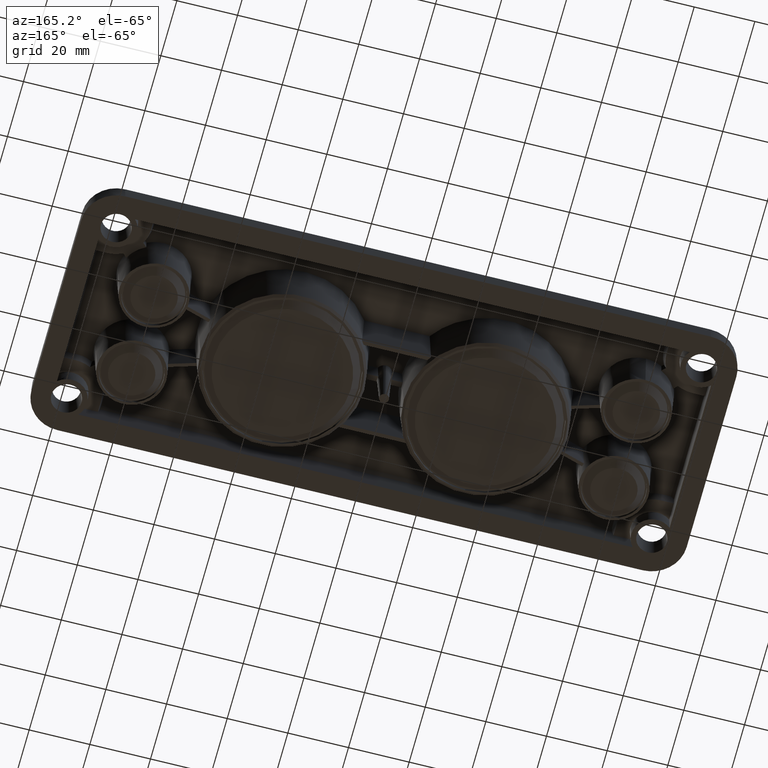
[diagram: clean part render]
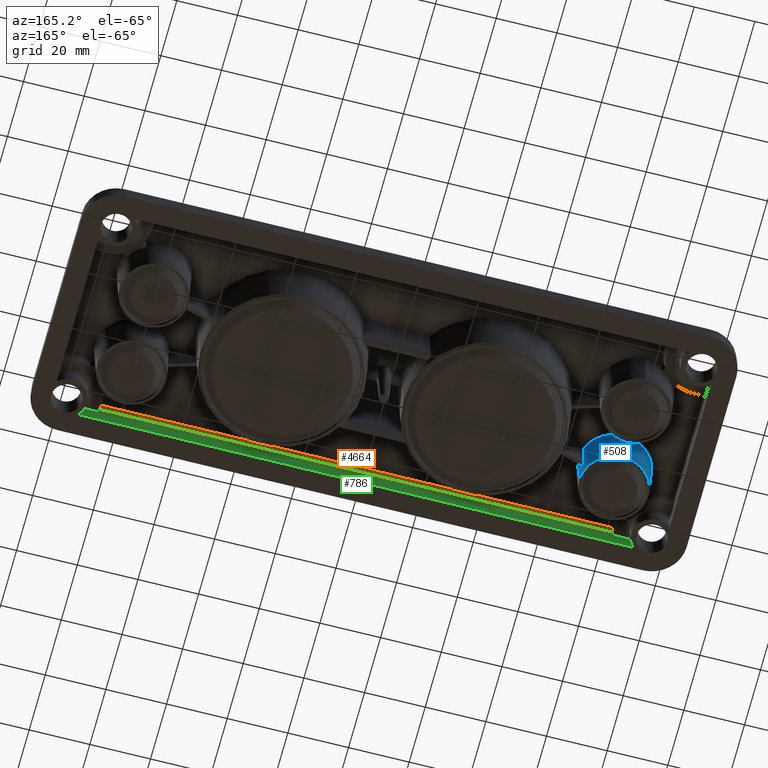
[diagram: same view with three faces highlighted in distinct colors, each labeled with its STEP entity id]
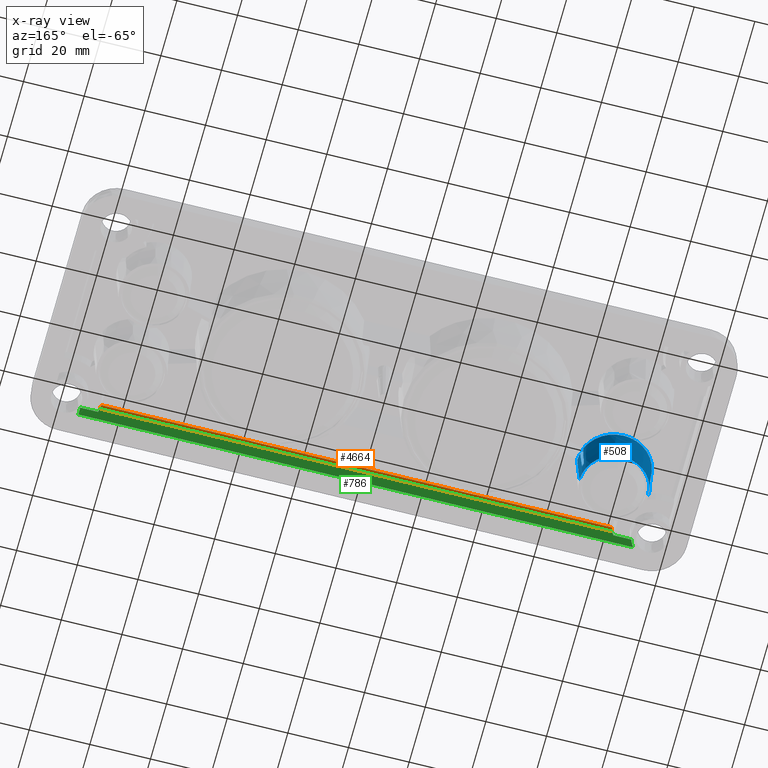
[diagram: x-ray of the same camera — body ghosted, the three highlighted faces saturated]
A machine part, auxiliary view with three faces highlighted in distinct colors.
The next image is the same camera in x-ray (body ghosted, the three faces saturated) — at least one of them is partly hidden behind the body in this view.
Their STEP definitions:

[orange] entity #4664 — the highlighted planar face has unit normal (0, 0.6884, -0.7254).
#158 = LINE ( 'NONE', #3051, #7652 ) ;
#596 = CARTESIAN_POINT ( 'NONE',  ( 84.19615242270671700, -34.08073776573567000, 6.999999999999999100 ) ) ;
#1199 = EDGE_CURVE ( 'NONE', #3316, #4464, #9877, .T. ) ;
#1209 = VECTOR ( 'NONE', #8122, 1000.000000000000000 ) ;
#1221 = ORIENTED_EDGE ( 'NONE', *, *, #9351, .T. ) ;
#1745 = EDGE_LOOP ( 'NONE', ( #9607, #3641, #7787, #1221 ) ) ;
#1861 = LINE ( 'NONE', #7263, #6465 ) ;
#1972 = CARTESIAN_POINT ( 'NONE',  ( -84.46373440008206000, -35.13307372197861200, 6.001370465245422300 ) ) ;
#2060 = PLANE ( 'NONE',  #8461 ) ;
#2387 = CARTESIAN_POINT ( 'NONE',  ( 84.46373440008206000, -35.13307372197861200, 6.001370465245425800 ) ) ;
#2474 = VERTEX_POINT ( 'NONE', #2387 ) ;
#3051 = CARTESIAN_POINT ( 'NONE',  ( 84.19615242270673100, -34.08073776573567000, 6.999999999999999100 ) ) ;
#3200 = DIRECTION ( 'NONE',  ( 0.1813845403661493200, -0.7133420404698815900, -0.6769363203540098600 ) ) ;
#3316 = VERTEX_POINT ( 'NONE', #1972 ) ;
#3641 = ORIENTED_EDGE ( 'NONE', *, *, #4745, .T. ) ;
#3816 = VECTOR ( 'NONE', #4612, 1000.000000000000000 ) ;
#4464 = VERTEX_POINT ( 'NONE', #9789 ) ;
#4612 = DIRECTION ( 'NONE',  ( 0.1813845403661491800, 0.7133420404698810300, 0.6769363203540105200 ) ) ;
#4643 = DIRECTION ( 'NONE',  ( 6.773501300776240900E-018, 0.6883545756937548000, -0.7253743710122869700 ) ) ;
#4664 = ADVANCED_FACE ( 'NONE', ( #8443 ), #2060, .T. ) ;
#4745 = EDGE_CURVE ( 'NONE', #2474, #3316, #10153, .T. ) ;
#4803 = CARTESIAN_POINT ( 'NONE',  ( -84.46373440008203200, -35.13307372197861200, 6.001370465245426700 ) ) ;
#4807 = EDGE_CURVE ( 'NONE', #9349, #2474, #158, .T. ) ;
#5410 = DIRECTION ( 'NONE',  ( 0.0000000000000000000, 0.7253743710122869700, 0.6883545756937548000 ) ) ;
#6465 = VECTOR ( 'NONE', #10649, 1000.000000000000000 ) ;
#7263 = CARTESIAN_POINT ( 'NONE',  ( 3.200980580693822700, -34.08073776573567000, 7.000000000000000000 ) ) ;
#7284 = CARTESIAN_POINT ( 'NONE',  ( 91.40196116138766100, -35.13307372197861200, 6.001370465245427600 ) ) ;
#7652 = VECTOR ( 'NONE', #3200, 1000.000000000000000 ) ;
#7787 = ORIENTED_EDGE ( 'NONE', *, *, #1199, .T. ) ;
#8122 = DIRECTION ( 'NONE',  ( -1.000000000000000000, 9.813181410966728600E-018, -5.142870454504143400E-019 ) ) ;
#8443 = FACE_OUTER_BOUND ( 'NONE', #1745, .T. ) ;
#8461 = AXIS2_PLACEMENT_3D ( 'NONE', #8819, #4643, #5410 ) ;
#8819 = CARTESIAN_POINT ( 'NONE',  ( 3.200980580693822700, -34.60690574385714100, 6.500685232622711100 ) ) ;
#9349 = VERTEX_POINT ( 'NONE', #596 ) ;
#9351 = EDGE_CURVE ( 'NONE', #4464, #9349, #1861, .T. ) ;
#9607 = ORIENTED_EDGE ( 'NONE', *, *, #4807, .T. ) ;
#9789 = CARTESIAN_POINT ( 'NONE',  ( -84.19615242270667500, -34.08073776573567000, 6.999999999999999100 ) ) ;
#9877 = LINE ( 'NONE', #4803, #3816 ) ;
#10153 = LINE ( 'NONE', #7284, #1209 ) ;
#10649 = DIRECTION ( 'NONE',  ( 1.000000000000000000, -4.662570613856925300E-018, 4.913324245601473400E-018 ) ) ;

[blue] entity #508 — the highlighted conical surface has half-angle 3 deg.
#105 = CARTESIAN_POINT ( 'NONE',  ( -67.67327122121194800, -11.35459341353552900, 7.000000000000000900 ) ) ;
#200 = CARTESIAN_POINT ( 'NONE',  ( -86.48067782908010800, -4.916530158020561800, -7.500000000000007100 ) ) ;
#264 = CARTESIAN_POINT ( 'NONE',  ( -90.42439762292824000, -8.570012452448244400, 7.000000000000006200 ) ) ;
#293 = ORIENTED_EDGE ( 'NONE', *, *, #468, .T. ) ;
#310 = EDGE_LOOP ( 'NONE', ( #8378, #6659, #6994, #7792, #293, #6895, #6624, #5521 ) ) ;
#342 = CARTESIAN_POINT ( 'NONE',  ( -87.93241893705607000, -5.184017975268633700, 7.000000000000005300 ) ) ;
#359 = CARTESIAN_POINT ( 'NONE',  ( -68.25649940862764700, -11.16707493187792200, -3.000000000000002700 ) ) ;
#394 = CARTESIAN_POINT ( 'NONE',  ( -79.49999999999995700, -13.99999999999997300, 6.999999999999999100 ) ) ;
#409 = CARTESIAN_POINT ( 'NONE',  ( -68.71177438289376500, -8.304263329048467300, 7.000000000000007100 ) ) ;
#468 = EDGE_CURVE ( 'NONE', #2886, #1741, #7290, .T. ) ;
#508 = ADVANCED_FACE ( 'NONE', ( #9477 ), #6335, .T. ) ;
#979 = AXIS2_PLACEMENT_3D ( 'NONE', #394, #4655, #6267 ) ;
#1114 = CARTESIAN_POINT ( 'NONE',  ( -72.38964787629905100, -4.086871287661449700, 7.000000000000005300 ) ) ;
#1165 = CARTESIAN_POINT ( 'NONE',  ( -67.38101944820756700, -13.99999999999997500, 7.000000000000003600 ) ) ;
#1178 = CARTESIAN_POINT ( 'NONE',  ( -74.83550361446370400, -2.727480243542356900, 7.000000000000006200 ) ) ;
#1446 = CARTESIAN_POINT ( 'NONE',  ( -68.58463294845320500, -10.08892187245101500, -3.000000000000001800 ) ) ;
#1741 = VERTEX_POINT ( 'NONE', #6827 ) ;
#1782 = CARTESIAN_POINT ( 'NONE',  ( -76.52678804757094600, -2.936578376944387600, -7.500000000000007100 ) ) ;
#1792 = CARTESIAN_POINT ( 'NONE',  ( -67.47922358817444900, -12.22211553200407000, 7.000000000000006200 ) ) ;
#1812 = CARTESIAN_POINT ( 'NONE',  ( -68.43657837694438200, -11.02678804757096400, -7.500000000000007100 ) ) ;
#1818 = B_SPLINE_CURVE_WITH_KNOTS ( 'NONE', 3,
 ( #4441, #10400, #8776, #264, #8808, #342, #2023, #3659, #9543, #7896, #4526, #6130, #1178, #1114, #7059, #3700, #409, #2789 ),
 .UNSPECIFIED., .F., .F.,
 ( 4, 2, 2, 2, 2, 2, 2, 2, 4 ),
 ( 0.0000000000000000000, 0.1250000000000000000, 0.2500000000000000000, 0.3750000000000000000, 0.5000000000000000000, 0.6250000000000000000, 0.7500000000000000000, 0.8750000000000000000, 1.000000000000000000 ),
 .UNSPECIFIED. ) ;
#1883 = CARTESIAN_POINT ( 'NONE',  ( -88.58346984197936500, -7.019322170919822100, -7.500000000000007100 ) ) ;
#2023 = CARTESIAN_POINT ( 'NONE',  ( -86.85084696848598200, -4.263867449736073600, 7.000000000000006200 ) ) ;
#2040 = CARTESIAN_POINT ( 'NONE',  ( -68.58463294845320500, -10.08892187245101500, -3.000000000000001800 ) ) ;
#2079 = CARTESIAN_POINT ( 'NONE',  ( -68.20475651442936300, -9.608284592963986600, 7.000000000000000900 ) ) ;
#2156 = B_SPLINE_CURVE_WITH_KNOTS ( 'NONE', 3,
 ( #105, #1792, #5241, #1165 ),
 .UNSPECIFIED., .F., .F.,
 ( 4, 4 ),
 ( 0.0000000000000000000, 1.000000000000000000 ),
 .UNSPECIFIED. ) ;
#2205 = VERTEX_POINT ( 'NONE', #2206 ) ;
#2206 = CARTESIAN_POINT ( 'NONE',  ( -67.38101944820756700, -13.99999999999997500, 7.000000000000003600 ) ) ;
#2337 = CARTESIAN_POINT ( 'NONE',  ( -68.58463294845320500, -10.08892187245101500, -3.000000000000001800 ) ) ;
#2789 = CARTESIAN_POINT ( 'NONE',  ( -68.20475651442936300, -9.608284592963986600, 7.000000000000000900 ) ) ;
#2886 = VERTEX_POINT ( 'NONE', #2337 ) ;
#2954 = CARTESIAN_POINT ( 'NONE',  ( -68.34831878189405100, -10.80265612347475300, -3.000000000000002700 ) ) ;
#3091 = CARTESIAN_POINT ( 'NONE',  ( -68.20475651442936300, -9.608284592963986600, 7.000000000000000900 ) ) ;
#3252 = LINE ( 'NONE', #3681, #7201 ) ;
#3324 = VERTEX_POINT ( 'NONE', #2079 ) ;
#3452 = CARTESIAN_POINT ( 'NONE',  ( -68.14093224781166200, -13.99999999999997500, -7.500000000000007100 ) ) ;
#3521 = CARTESIAN_POINT ( 'NONE',  ( -72.51932217091985000, -4.916530158020564500, -7.500000000000007100 ) ) ;
#3559 = CARTESIAN_POINT ( 'NONE',  ( -68.14093224781167600, -12.51310150825399100, -7.500000000000006200 ) ) ;
#3597 = VERTEX_POINT ( 'NONE', #4421 ) ;
#3659 = CARTESIAN_POINT ( 'NONE',  ( -84.43899514383167600, -2.845021059651627200, 7.000000000000005300 ) ) ;
#3681 = CARTESIAN_POINT ( 'NONE',  ( -67.38101944820756700, -13.99999999999997300, 6.999999999999999100 ) ) ;
#3700 = CARTESIAN_POINT ( 'NONE',  ( -69.44672310118592400, -7.089222056368748200, 7.000000000000006200 ) ) ;
#3774 = CARTESIAN_POINT ( 'NONE',  ( -68.25649940862764700, -11.16707493187792200, -3.000000000000002700 ) ) ;
#3876 = CARTESIAN_POINT ( 'NONE',  ( -91.61898055179234700, -13.99999999999997200, 6.999999999999999100 ) ) ;
#4279 = CARTESIAN_POINT ( 'NONE',  ( -90.85906775218826700, -13.99999999999997200, -7.500000000000007100 ) ) ;
#4307 = CARTESIAN_POINT ( 'NONE',  ( -70.41653015802054900, -7.019322170919826600, -7.500000000000007100 ) ) ;
#4375 = CARTESIAN_POINT ( 'NONE',  ( -82.47321195242898300, -2.936578376944387600, -7.500000000000007100 ) ) ;
#4421 = CARTESIAN_POINT ( 'NONE',  ( -67.67327122121194800, -11.35459341353552900, 7.000000000000000900 ) ) ;
#4441 = CARTESIAN_POINT ( 'NONE',  ( -91.61898055179234700, -13.99999999999997200, 7.000000000000002700 ) ) ;
#4462 = DIRECTION ( 'NONE',  ( 0.05233595624294350200, 0.0000000000000000000, 0.9986295347545739400 ) ) ;
#4526 = CARTESIAN_POINT ( 'NONE',  ( -78.93908979661370000, -1.813425094221670800, 7.000000000000006200 ) ) ;
#4629 = VECTOR ( 'NONE', #4802, 1000.000000000000000 ) ;
#4655 = DIRECTION ( 'NONE',  ( 0.0000000000000000000, -0.0000000000000000000, 1.000000000000000000 ) ) ;
#4780 = VERTEX_POINT ( 'NONE', #10713 ) ;
#4793 = B_SPLINE_CURVE_WITH_KNOTS ( 'NONE', 3,
 ( #3774, #10509, #10551, #9771 ),
 .UNSPECIFIED., .F., .F.,
 ( 4, 4 ),
 ( 0.0000000000000000000, 1.000000000000000000 ),
 .UNSPECIFIED. ) ;
#4802 = DIRECTION ( 'NONE',  ( -0.05233595624294350200, 6.409306129323669300E-018, 0.9986295347545739400 ) ) ;
#5037 = EDGE_CURVE ( 'NONE', #2886, #3324, #8760, .T. ) ;
#5158 = CARTESIAN_POINT ( 'NONE',  ( -73.77935788067893000, -4.074601213744040600, -7.500000000000007100 ) ) ;
#5227 = CARTESIAN_POINT ( 'NONE',  ( -85.22064211932101300, -4.074601213744039700, -7.500000000000007100 ) ) ;
#5241 = CARTESIAN_POINT ( 'NONE',  ( -67.38101944820756700, -13.11104043403558200, 7.000000000000006200 ) ) ;
#5418 = LINE ( 'NONE', #3876, #4629 ) ;
#5521 = ORIENTED_EDGE ( 'NONE', *, *, #7562, .F. ) ;
#6019 = EDGE_CURVE ( 'NONE', #3597, #2205, #2156, .T. ) ;
#6130 = CARTESIAN_POINT ( 'NONE',  ( -76.17700737399700000, -2.261816656827222400, 7.000000000000005300 ) ) ;
#6267 = DIRECTION ( 'NONE',  ( 1.000000000000000000, 0.0000000000000000000, 0.0000000000000000000 ) ) ;
#6327 = CARTESIAN_POINT ( 'NONE',  ( -68.45934407125231800, -9.931703641546693700, 0.2624499621896314600 ) ) ;
#6335 = CONICAL_SURFACE ( 'NONE', #979, 12.11898055179239000, 0.05235987755982954300 ) ;
#6415 = EDGE_CURVE ( 'NONE', #10846, #4780, #6753, .T. ) ;
#6624 = ORIENTED_EDGE ( 'NONE', *, *, #6019, .T. ) ;
#6659 = ORIENTED_EDGE ( 'NONE', *, *, #9227, .T. ) ;
#6753 = B_SPLINE_CURVE_WITH_KNOTS ( 'NONE', 3,
 ( #9335, #3559, #1812, #10198, #4307, #3521, #5158, #1782, #7658, #8597, #4375, #5227, #200, #1883, #7756, #7692, #6792, #4279 ),
 .UNSPECIFIED., .F., .F.,
 ( 4, 2, 2, 2, 2, 2, 2, 2, 4 ),
 ( 0.0000000000000000000, 0.1250000000000000000, 0.2500000000000000000, 0.3750000000000000000, 0.5000000000000000000, 0.6250000000000000000, 0.7500000000000000000, 0.8750000000000000000, 1.000000000000000000 ),
 .UNSPECIFIED. ) ;
#6792 = CARTESIAN_POINT ( 'NONE',  ( -90.85906775218826700, -12.51310150825399600, -7.500000000000007100 ) ) ;
#6827 = CARTESIAN_POINT ( 'NONE',  ( -68.25649940862764700, -11.16707493187792200, -3.000000000000002700 ) ) ;
#6838 = EDGE_CURVE ( 'NONE', #6860, #3324, #1818, .T. ) ;
#6860 = VERTEX_POINT ( 'NONE', #9579 ) ;
#6895 = ORIENTED_EDGE ( 'NONE', *, *, #10882, .T. ) ;
#6994 = ORIENTED_EDGE ( 'NONE', *, *, #6838, .T. ) ;
#7059 = CARTESIAN_POINT ( 'NONE',  ( -71.28587912686725800, -4.980274589990322000, 7.000000000000006200 ) ) ;
#7080 = CARTESIAN_POINT ( 'NONE',  ( -68.45786900876819900, -10.44270537803113900, -3.000000000000002700 ) ) ;
#7201 = VECTOR ( 'NONE', #4462, 1000.000000000000000 ) ;
#7290 = B_SPLINE_CURVE_WITH_KNOTS ( 'NONE', 3,
 ( #2040, #7080, #2954, #359 ),
 .UNSPECIFIED., .F., .F.,
 ( 4, 4 ),
 ( 0.0000000000000000000, 1.000000000000000000 ),
 .UNSPECIFIED. ) ;
#7562 = EDGE_CURVE ( 'NONE', #10846, #2205, #3252, .T. ) ;
#7658 = CARTESIAN_POINT ( 'NONE',  ( -78.01310150825396800, -2.640932247811674100, -7.500000000000007100 ) ) ;
#7692 = CARTESIAN_POINT ( 'NONE',  ( -90.56342162305557500, -11.02678804757096200, -7.500000000000007100 ) ) ;
#7756 = CARTESIAN_POINT ( 'NONE',  ( -89.42539878625591100, -8.279357880678937000, -7.500000000000007100 ) ) ;
#7792 = ORIENTED_EDGE ( 'NONE', *, *, #5037, .F. ) ;
#7896 = CARTESIAN_POINT ( 'NONE',  ( -80.35900982431843400, -1.830804040030696900, 7.000000000000005300 ) ) ;
#8378 = ORIENTED_EDGE ( 'NONE', *, *, #6415, .T. ) ;
#8597 = CARTESIAN_POINT ( 'NONE',  ( -80.98689849174593300, -2.640932247811673700, -7.500000000000007100 ) ) ;
#8760 = B_SPLINE_CURVE_WITH_KNOTS ( 'NONE', 3,
 ( #1446, #6327, #10673, #3091 ),
 .UNSPECIFIED., .F., .F.,
 ( 4, 4 ),
 ( 0.0000000000000000000, 1.000000000000000000 ),
 .UNSPECIFIED. ) ;
#8776 = CARTESIAN_POINT ( 'NONE',  ( -91.37429749182433600, -11.20209234139828600, 7.000000000000007100 ) ) ;
#8808 = CARTESIAN_POINT ( 'NONE',  ( -89.71940732341019500, -7.337347213861605200, 7.000000000000006200 ) ) ;
#9227 = EDGE_CURVE ( 'NONE', #4780, #6860, #5418, .T. ) ;
#9335 = CARTESIAN_POINT ( 'NONE',  ( -68.14093224781166200, -13.99999999999997500, -7.500000000000007100 ) ) ;
#9477 = FACE_OUTER_BOUND ( 'NONE', #310, .T. ) ;
#9543 = CARTESIAN_POINT ( 'NONE',  ( -83.10929040850659500, -2.346663527664244200, 7.000000000000006200 ) ) ;
#9579 = CARTESIAN_POINT ( 'NONE',  ( -91.61898055179234700, -13.99999999999997200, 7.000000000000002700 ) ) ;
#9771 = CARTESIAN_POINT ( 'NONE',  ( -67.67327122121194800, -11.35459341353552900, 7.000000000000000900 ) ) ;
#10198 = CARTESIAN_POINT ( 'NONE',  ( -69.57460121374398900, -8.279357880678937000, -7.500000000000007100 ) ) ;
#10400 = CARTESIAN_POINT ( 'NONE',  ( -91.61898055179236200, -12.60087935627906800, 7.000000000000005300 ) ) ;
#10509 = CARTESIAN_POINT ( 'NONE',  ( -68.06522033174687200, -11.22772664122831500, 0.2564502455441185500 ) ) ;
#10551 = CARTESIAN_POINT ( 'NONE',  ( -67.87080604411234200, -11.29023131700114400, 3.589783578877451000 ) ) ;
#10673 = CARTESIAN_POINT ( 'NONE',  ( -68.33271859324435100, -9.771491215051018000, 3.595783295522965600 ) ) ;
#10713 = CARTESIAN_POINT ( 'NONE',  ( -90.85906775218826700, -13.99999999999997200, -7.500000000000007100 ) ) ;
#10846 = VERTEX_POINT ( 'NONE', #3452 ) ;
#10882 = EDGE_CURVE ( 'NONE', #1741, #3597, #4793, .T. ) ;

[green] entity #786 — the highlighted planar face has unit normal (-0, -0.9986, 0.0523).
#447 = ORIENTED_EDGE ( 'NONE', *, *, #4355, .F. ) ;
#533 = LINE ( 'NONE', #6205, #4864 ) ;
#686 = ORIENTED_EDGE ( 'NONE', *, *, #1322, .F. ) ;
#786 = ADVANCED_FACE ( 'NONE', ( #10407 ), #8619, .F. ) ;
#875 = EDGE_LOOP ( 'NONE', ( #447, #7302, #4306, #7994, #939, #9549, #686, #9898 ) ) ;
#939 = ORIENTED_EDGE ( 'NONE', *, *, #6747, .T. ) ;
#1043 = DIRECTION ( 'NONE',  ( -1.000000000000000000, 9.813181410966728600E-018, -5.142870454504143400E-019 ) ) ;
#1208 = DIRECTION ( 'NONE',  ( -1.000000000000000000, 9.813181410966728600E-018, -5.142870454504143400E-019 ) ) ;
#1209 = VECTOR ( 'NONE', #8122, 1000.000000000000000 ) ;
#1225 = VECTOR ( 'NONE', #1043, 1000.000000000000000 ) ;
#1322 = EDGE_CURVE ( 'NONE', #3316, #4404, #10010, .T. ) ;
#1867 = VERTEX_POINT ( 'NONE', #2949 ) ;
#1972 = CARTESIAN_POINT ( 'NONE',  ( -84.46373440008206000, -35.13307372197861200, 6.001370465245422300 ) ) ;
#2005 = CARTESIAN_POINT ( 'NONE',  ( 91.03438662993259800, -35.32967964773626300, 2.249946968760411000 ) ) ;
#2119 = VECTOR ( 'NONE', #8019, 1000.000000000000000 ) ;
#2193 = CARTESIAN_POINT ( 'NONE',  ( 91.40196116138777400, -35.49999999999991500, -0.9999999999952610100 ) ) ;
#2387 = CARTESIAN_POINT ( 'NONE',  ( 84.46373440008206000, -35.13307372197861200, 6.001370465245425800 ) ) ;
#2474 = VERTEX_POINT ( 'NONE', #2387 ) ;
#2949 = CARTESIAN_POINT ( 'NONE',  ( -90.85092228244445800, -35.23796110358473800, 4.000000000007645400 ) ) ;
#3070 = DIRECTION ( 'NONE',  ( -1.000000000000000000, -0.0000000000000000000, 0.0000000000000000000 ) ) ;
#3196 = DIRECTION ( 'NONE',  ( -0.2584880576001508700, -0.05055729016050009700, -0.9646905641135544700 ) ) ;
#3255 = EDGE_CURVE ( 'NONE', #4404, #1867, #533, .T. ) ;
#3316 = VERTEX_POINT ( 'NONE', #1972 ) ;
#3509 = DIRECTION ( 'NONE',  ( 0.0000000000000000000, -0.05233595624294658900, -0.9986295347545737200 ) ) ;
#3561 = B_SPLINE_CURVE_WITH_KNOTS ( 'NONE', 3,
 ( #2193, #7008, #2005, #7848 ),
 .UNSPECIFIED., .F., .F.,
 ( 4, 4 ),
 ( 0.0000000000000000000, 1.000000000000000000 ),
 .UNSPECIFIED. ) ;
#3582 = CARTESIAN_POINT ( 'NONE',  ( 91.40196116138766100, -35.50000000000001400, -1.000000000000001300 ) ) ;
#3623 = CARTESIAN_POINT ( 'NONE',  ( -91.40196116138800200, -35.49999999999971600, -0.9999999999905355700 ) ) ;
#3765 = B_SPLINE_CURVE_WITH_KNOTS ( 'NONE', 3,
 ( #3623, #9616, #6251, #9511 ),
 .UNSPECIFIED., .F., .F.,
 ( 4, 4 ),
 ( 0.0000000000000000000, 1.000000000000000000 ),
 .UNSPECIFIED. ) ;
#3969 = CARTESIAN_POINT ( 'NONE',  ( 90.85092228244415900, -35.23796110358493600, 4.000000000003817400 ) ) ;
#4237 = VECTOR ( 'NONE', #3070, 1000.000000000000000 ) ;
#4306 = ORIENTED_EDGE ( 'NONE', *, *, #9043, .F. ) ;
#4355 = EDGE_CURVE ( 'NONE', #7606, #2474, #4626, .T. ) ;
#4404 = VERTEX_POINT ( 'NONE', #7293 ) ;
#4626 = LINE ( 'NONE', #7109, #2119 ) ;
#4745 = EDGE_CURVE ( 'NONE', #2474, #3316, #10153, .T. ) ;
#4768 = LINE ( 'NONE', #4773, #4237 ) ;
#4773 = CARTESIAN_POINT ( 'NONE',  ( -5.487574880074952900E-015, -35.50000000000001400, -1.000000000000000400 ) ) ;
#4864 = VECTOR ( 'NONE', #1208, 1000.000000000000000 ) ;
#5271 = VERTEX_POINT ( 'NONE', #10717 ) ;
#5523 = CARTESIAN_POINT ( 'NONE',  ( 85.00000000000002800, -35.23796110358479400, 3.999999999999998200 ) ) ;
#5807 = CARTESIAN_POINT ( 'NONE',  ( -84.46373440008206000, -35.13307372197861200, 6.001370465245425800 ) ) ;
#5836 = AXIS2_PLACEMENT_3D ( 'NONE', #3582, #10358, #3509 ) ;
#6205 = CARTESIAN_POINT ( 'NONE',  ( 91.40196116138766100, -35.23796110358480100, 3.999999999999998200 ) ) ;
#6251 = CARTESIAN_POINT ( 'NONE',  ( -91.03459843658345100, -35.32978232772620700, 2.247946671323347800 ) ) ;
#6747 = EDGE_CURVE ( 'NONE', #5271, #1867, #3765, .T. ) ;
#6874 = CARTESIAN_POINT ( 'NONE',  ( 91.40196116138777400, -35.49999999999991500, -0.9999999999952610100 ) ) ;
#6969 = VERTEX_POINT ( 'NONE', #3969 ) ;
#7008 = CARTESIAN_POINT ( 'NONE',  ( 91.21804349182706100, -35.41702639307839500, 0.5832803020937636900 ) ) ;
#7109 = CARTESIAN_POINT ( 'NONE',  ( 85.00000000000002800, -35.23796110358480100, 4.000000000000000000 ) ) ;
#7284 = CARTESIAN_POINT ( 'NONE',  ( 91.40196116138766100, -35.13307372197861200, 6.001370465245427600 ) ) ;
#7293 = CARTESIAN_POINT ( 'NONE',  ( -85.00000000000007100, -35.23796110358480100, 3.999999999999994200 ) ) ;
#7302 = ORIENTED_EDGE ( 'NONE', *, *, #8000, .F. ) ;
#7606 = VERTEX_POINT ( 'NONE', #5523 ) ;
#7657 = CARTESIAN_POINT ( 'NONE',  ( 91.40196116138766100, -35.23796110358480100, 3.999999999999998200 ) ) ;
#7848 = CARTESIAN_POINT ( 'NONE',  ( 90.85092228244415900, -35.23796110358493600, 4.000000000003817400 ) ) ;
#7994 = ORIENTED_EDGE ( 'NONE', *, *, #8884, .T. ) ;
#8000 = EDGE_CURVE ( 'NONE', #6969, #7606, #8456, .T. ) ;
#8019 = DIRECTION ( 'NONE',  ( -0.2584880576001383800, 0.05055729016050027800, 0.9646905641135579100 ) ) ;
#8122 = DIRECTION ( 'NONE',  ( -1.000000000000000000, 9.813181410966728600E-018, -5.142870454504143400E-019 ) ) ;
#8456 = LINE ( 'NONE', #7657, #1225 ) ;
#8619 = PLANE ( 'NONE',  #5836 ) ;
#8636 = VERTEX_POINT ( 'NONE', #6874 ) ;
#8884 = EDGE_CURVE ( 'NONE', #8636, #5271, #4768, .T. ) ;
#9043 = EDGE_CURVE ( 'NONE', #8636, #6969, #3561, .T. ) ;
#9340 = VECTOR ( 'NONE', #3196, 1000.000000000000200 ) ;
#9511 = CARTESIAN_POINT ( 'NONE',  ( -90.85092228244445800, -35.23796110358473800, 4.000000000007645400 ) ) ;
#9549 = ORIENTED_EDGE ( 'NONE', *, *, #3255, .F. ) ;
#9616 = CARTESIAN_POINT ( 'NONE',  ( -91.21827806289788000, -35.41712862653128000, 0.5812800046566815000 ) ) ;
#9898 = ORIENTED_EDGE ( 'NONE', *, *, #4745, .F. ) ;
#10010 = LINE ( 'NONE', #5807, #9340 ) ;
#10153 = LINE ( 'NONE', #7284, #1209 ) ;
#10358 = DIRECTION ( 'NONE',  ( -9.826648491202943600E-018, -0.9986295347545738300, 0.05233595624294659600 ) ) ;
#10407 = FACE_OUTER_BOUND ( 'NONE', #875, .T. ) ;
#10717 = CARTESIAN_POINT ( 'NONE',  ( -91.40196116138800200, -35.49999999999971600, -0.9999999999905355700 ) ) ;